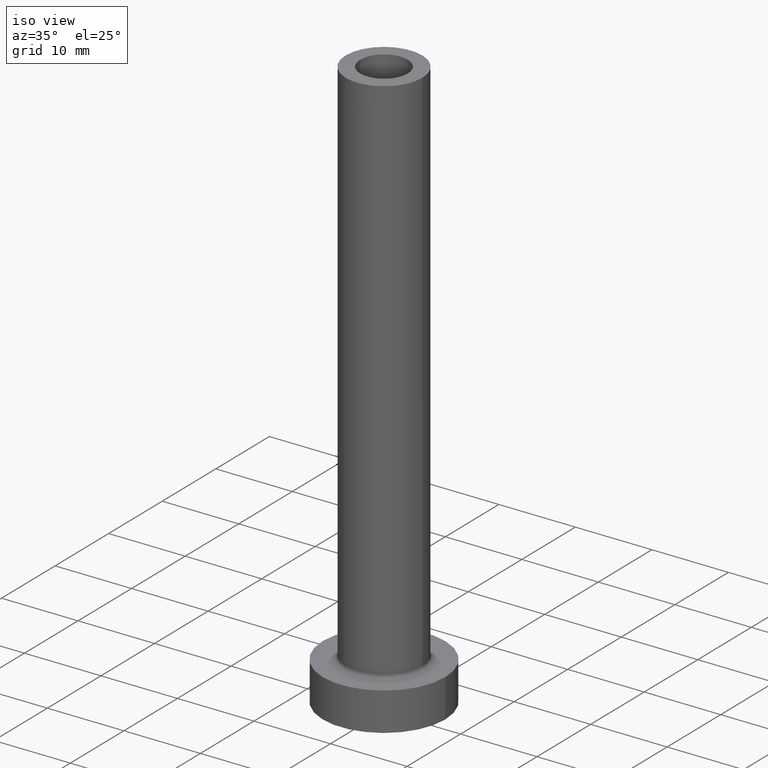
[diagram: clean part render]
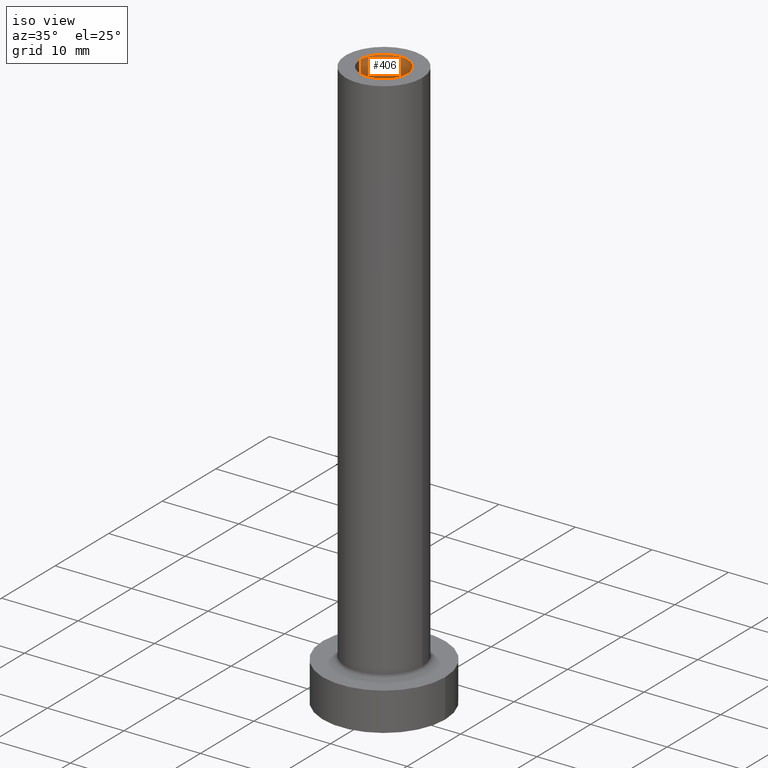
[diagram: same view with one face highlighted and labeled with its STEP entity id]
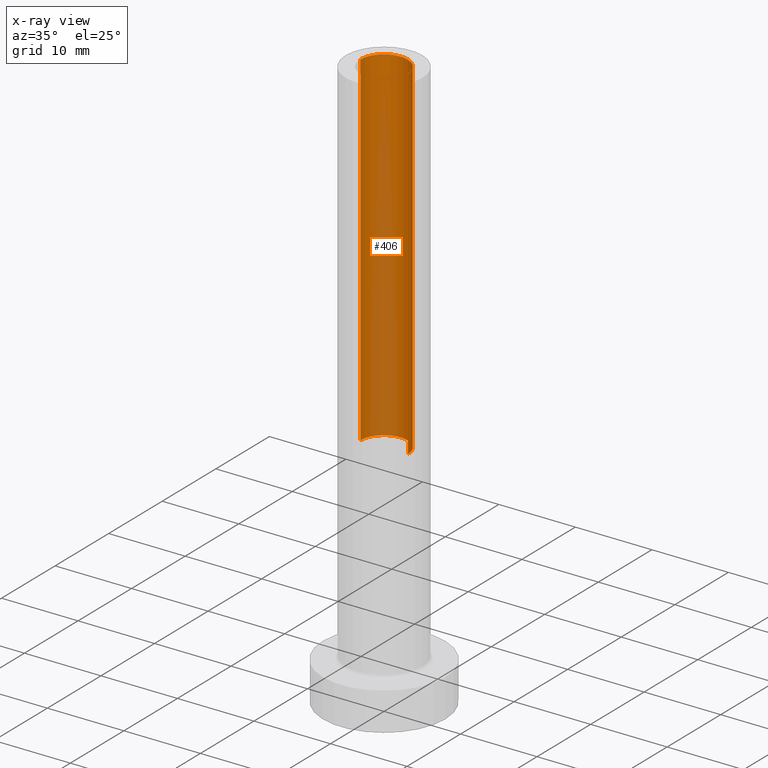
[diagram: x-ray of the same camera — body ghosted, the highlighted face saturated]
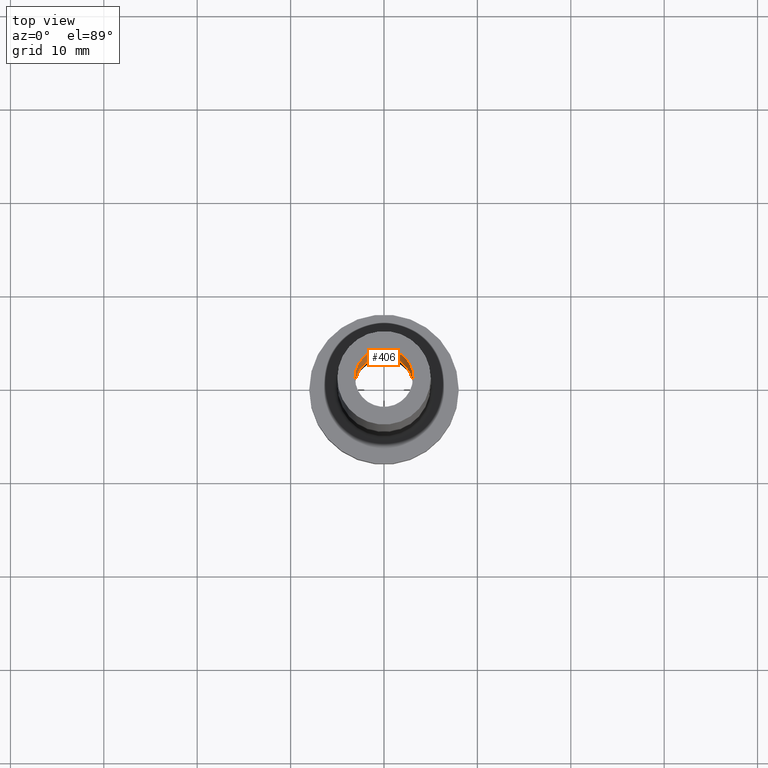
[diagram: same view with one face highlighted and labeled with its STEP entity id]
A machine part, iso view. The second image highlights one B-rep face of the part: STEP entity #406.
The next image is the same camera in x-ray: the body ghosted, the highlighted face saturated — about 32% of this face is hidden behind the body in this view.
A second angle (top view) of the same face is appended — the face is thin or edge-on in the first view.
In plain terms, the highlighted cylindrical surface (edge-blend (fillet) strip) has radius 3.1 mm, axis along (0, 0, -1).
Its self-contained STEP definition (entity closure, byte-faithful):
#5 = DIRECTION ( 'NONE',  ( 0.000000000000000000, 0.000000000000000000, -1.000000000000000000 ) ) ;
#39 = CARTESIAN_POINT ( 'NONE',  ( 3.100000000000000089, 3.796405077356793932E-16, 75.00000000000001421 ) ) ;
#52 = EDGE_CURVE ( 'NONE', #330, #245, #153, .T. ) ;
#53 = CARTESIAN_POINT ( 'NONE',  ( 3.100000000000000089, 3.796405077356793932E-16, 30.00000000000001421 ) ) ;
#61 = CIRCLE ( 'NONE', #313, 3.100000000000000089 ) ;
#70 = ORIENTED_EDGE ( 'NONE', *, *, #239, .F. ) ;
#72 = EDGE_CURVE ( 'NONE', #376, #245, #61, .T. ) ;
#79 = VERTEX_POINT ( 'NONE', #185 ) ;
#94 = CARTESIAN_POINT ( 'NONE',  ( 0.000000000000000000, 0.000000000000000000, 75.00000000000001421 ) ) ;
#153 = LINE ( 'NONE', #181, #393 ) ;
#160 = CARTESIAN_POINT ( 'NONE',  ( 0.000000000000000000, 0.000000000000000000, 75.00000000000001421 ) ) ;
#176 = CARTESIAN_POINT ( 'NONE',  ( -3.100000000000000089, 0.000000000000000000, 30.00000000000001421 ) ) ;
#181 = CARTESIAN_POINT ( 'NONE',  ( -3.100000000000000089, 0.000000000000000000, 75.00000000000001421 ) ) ;
#185 = CARTESIAN_POINT ( 'NONE',  ( 3.100000000000000089, 3.796405077356793932E-16, 75.00000000000001421 ) ) ;
#186 = VECTOR ( 'NONE', #5, 1000.000000000000000 ) ;
#189 = DIRECTION ( 'NONE',  ( 0.000000000000000000, 0.000000000000000000, 1.000000000000000000 ) ) ;
#194 = DIRECTION ( 'NONE',  ( 0.000000000000000000, 0.000000000000000000, -1.000000000000000000 ) ) ;
#197 = DIRECTION ( 'NONE',  ( 1.000000000000000000, 0.000000000000000000, 0.000000000000000000 ) ) ;
#208 = CARTESIAN_POINT ( 'NONE',  ( -3.100000000000000089, 0.000000000000000000, 75.00000000000001421 ) ) ;
#216 = DIRECTION ( 'NONE',  ( 1.000000000000000000, 0.000000000000000000, 0.000000000000000000 ) ) ;
#228 = CIRCLE ( 'NONE', #232, 3.100000000000000089 ) ;
#232 = AXIS2_PLACEMENT_3D ( 'NONE', #94, #442, #197 ) ;
#239 = EDGE_CURVE ( 'NONE', #79, #376, #382, .T. ) ;
#245 = VERTEX_POINT ( 'NONE', #176 ) ;
#264 = FACE_OUTER_BOUND ( 'NONE', #278, .T. ) ;
#278 = EDGE_LOOP ( 'NONE', ( #70, #400, #425, #397 ) ) ;
#313 = AXIS2_PLACEMENT_3D ( 'NONE', #430, #189, #216 ) ;
#321 = DIRECTION ( 'NONE',  ( 0.000000000000000000, 0.000000000000000000, -1.000000000000000000 ) ) ;
#330 = VERTEX_POINT ( 'NONE', #208 ) ;
#366 = AXIS2_PLACEMENT_3D ( 'NONE', #160, #194, #435 ) ;
#376 = VERTEX_POINT ( 'NONE', #53 ) ;
#382 = LINE ( 'NONE', #39, #186 ) ;
#393 = VECTOR ( 'NONE', #321, 1000.000000000000000 ) ;
#397 = ORIENTED_EDGE ( 'NONE', *, *, #72, .F. ) ;
#399 = CYLINDRICAL_SURFACE ( 'NONE', #366, 3.100000000000000089 ) ;
#400 = ORIENTED_EDGE ( 'NONE', *, *, #458, .T. ) ;
#406 = ADVANCED_FACE ( 'NONE', ( #264 ), #399, .F. ) ;
#425 = ORIENTED_EDGE ( 'NONE', *, *, #52, .T. ) ;
#430 = CARTESIAN_POINT ( 'NONE',  ( 0.000000000000000000, 0.000000000000000000, 30.00000000000001421 ) ) ;
#435 = DIRECTION ( 'NONE',  ( -1.000000000000000000, 0.000000000000000000, 0.000000000000000000 ) ) ;
#442 = DIRECTION ( 'NONE',  ( 0.000000000000000000, 0.000000000000000000, 1.000000000000000000 ) ) ;
#458 = EDGE_CURVE ( 'NONE', #79, #330, #228, .T. ) ;